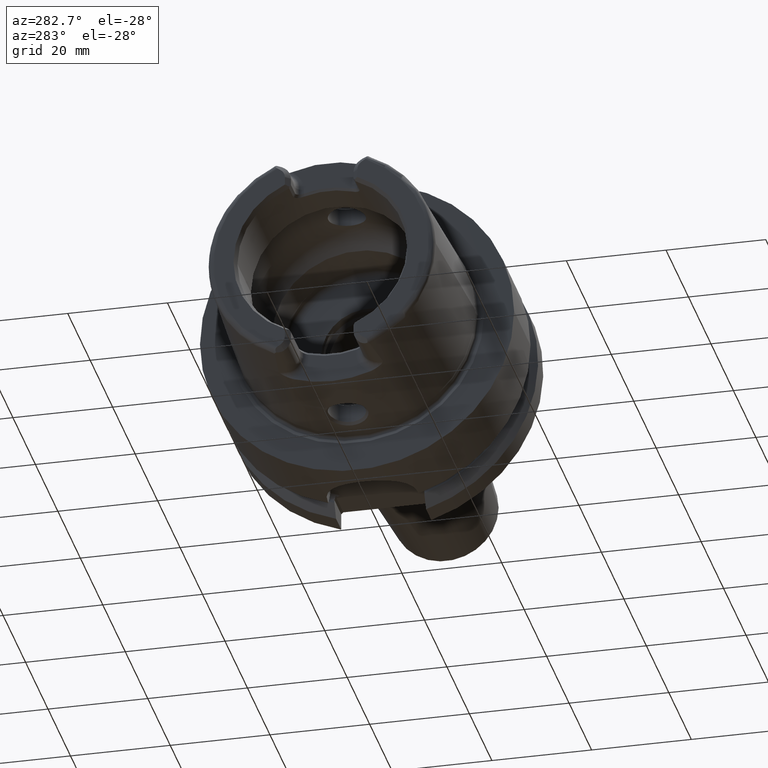
[diagram: clean part render]
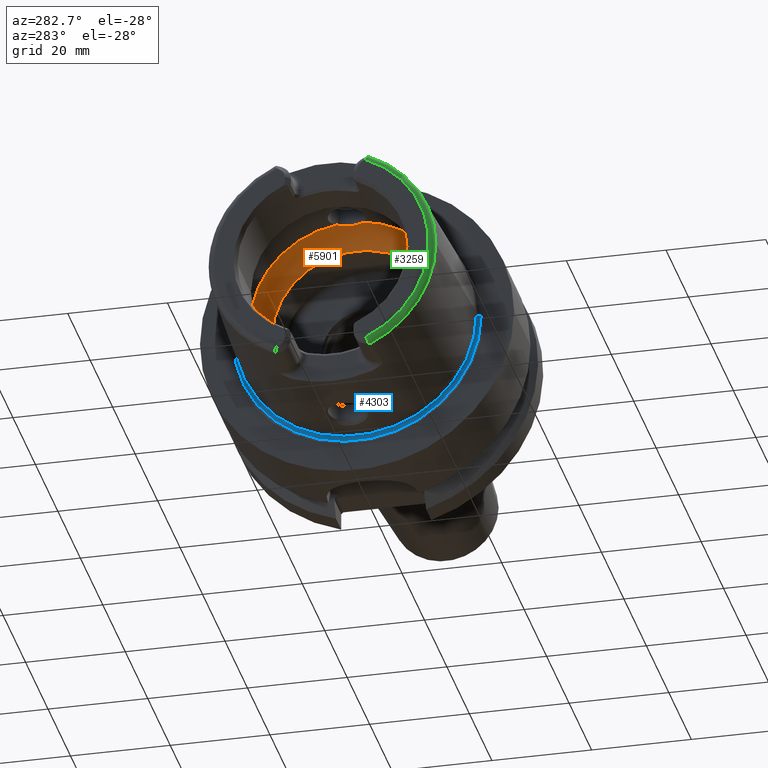
[diagram: same view with three faces highlighted in distinct colors, each labeled with its STEP entity id]
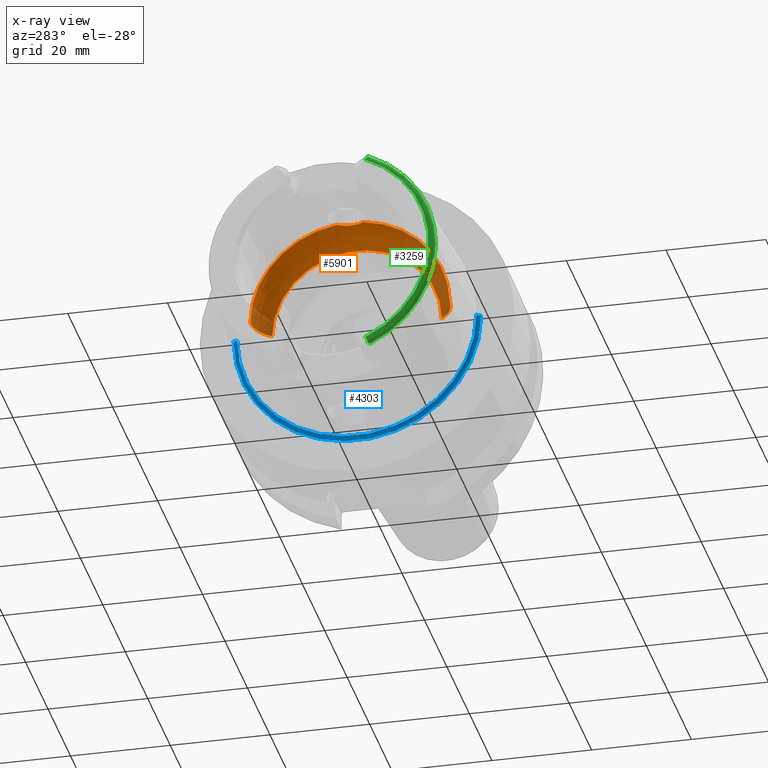
[diagram: x-ray of the same camera — body ghosted, the three highlighted faces saturated]
A machine part, auxiliary view with three faces highlighted in distinct colors.
The next image is the same camera in x-ray (body ghosted, the three faces saturated) — at least one of them is partly hidden behind the body in this view.
Their STEP definitions:

[orange] entity #5901 — the highlighted toroidal blend (fillet) surface has major radius 12 mm and minor (blend) radius 8 mm.
#2230=CARTESIAN_POINT('',(-5.25E0,0.E0,1.992470689575E1));
#2231=CARTESIAN_POINT('',(-5.25E0,1.634249880127E-1,1.992470689575E1));
#2232=CARTESIAN_POINT('',(-5.271317000323E0,4.905125142286E-1,
1.992366860007E1));
#2233=CARTESIAN_POINT('',(-5.367938073203E0,9.753406287590E-1,
1.991846757388E1));
#2234=CARTESIAN_POINT('',(-5.525913254439E0,1.440181253243E0,1.990841194030E1));
#2235=CARTESIAN_POINT('',(-5.745012466850E0,1.883704211740E0,1.989126222791E1));
#2236=CARTESIAN_POINT('',(-6.017092970824E0,2.289932260455E0,1.986481338490E1));
#2237=CARTESIAN_POINT('',(-6.231037578916E0,2.534045566496E0,1.983915065875E1));
#2238=CARTESIAN_POINT('',(-6.344997998398E0,2.648294615690E0,1.982388800484E1));
#2240=CARTESIAN_POINT('',(-6.344997998398E0,-2.648294615690E0,
1.982388800484E1));
#2241=CARTESIAN_POINT('',(-6.231045843136E0,-2.534053851646E0,
1.983914955193E1));
#2242=CARTESIAN_POINT('',(-6.017093742818E0,-2.289943440357E0,
1.986481395775E1));
#2243=CARTESIAN_POINT('',(-5.744901596897E0,-1.883527876206E0,
1.989127237006E1));
#2244=CARTESIAN_POINT('',(-5.525828432433E0,-1.439963272778E0,
1.990841763195E1));
#2245=CARTESIAN_POINT('',(-5.367908372542E0,-9.752317929729E-1,
1.991846926373E1));
#2246=CARTESIAN_POINT('',(-5.271289109403E0,-4.903031116233E-1,
1.992367002777E1));
#2247=CARTESIAN_POINT('',(-5.25E0,-1.633414179458E-1,1.992470689575E1));
#2248=CARTESIAN_POINT('',(-5.25E0,0.E0,1.992470689575E1));
#2250=CARTESIAN_POINT('',(-1.E-1,0.E0,0.E0));
#2251=DIRECTION('',(1.E0,0.E0,0.E0));
#2252=DIRECTION('',(0.E0,1.E0,0.E0));
#2253=AXIS2_PLACEMENT_3D('',#2250,#2251,#2252);
#2275=CARTESIAN_POINT('',(-6.344997998398E0,0.E0,0.E0));
#2276=DIRECTION('',(1.E0,0.E0,0.E0));
#2277=DIRECTION('',(0.E0,1.E0,0.E0));
#2278=AXIS2_PLACEMENT_3D('',#2275,#2276,#2277);
#2280=CARTESIAN_POINT('',(-6.344997998398E0,0.E0,0.E0));
#2281=DIRECTION('',(1.E0,0.E0,0.E0));
#2282=DIRECTION('',(0.E0,-1.324147307845E-1,9.911944002421E-1));
#2283=AXIS2_PLACEMENT_3D('',#2280,#2281,#2282);
#2373=CARTESIAN_POINT('',(-6.344997998398E0,1.2E1,0.E0));
#2374=DIRECTION('',(0.E0,0.E0,1.E0));
#2375=DIRECTION('',(7.806247497998E-1,6.25E-1,0.E0));
#2376=AXIS2_PLACEMENT_3D('',#2373,#2374,#2375);
#2383=CARTESIAN_POINT('',(-6.344997998398E0,-1.2E1,0.E0));
#2384=DIRECTION('',(0.E0,0.E0,-1.E0));
#2385=DIRECTION('',(7.806247497998E-1,-6.25E-1,0.E0));
#2386=AXIS2_PLACEMENT_3D('',#2383,#2384,#2385);
#2652=CARTESIAN_POINT('',(-1.E-1,1.7E1,0.E0));
#2653=VERTEX_POINT('',#2652);
#2654=CARTESIAN_POINT('',(-6.344997998398E0,2.E1,0.E0));
#2655=VERTEX_POINT('',#2654);
#2664=CARTESIAN_POINT('',(-1.E-1,-1.7E1,0.E0));
#2665=VERTEX_POINT('',#2664);
#2666=CARTESIAN_POINT('',(-6.344997998398E0,-2.E1,0.E0));
#2667=VERTEX_POINT('',#2666);
#2835=VERTEX_POINT('',#2230);
#2836=VERTEX_POINT('',#2238);
#2837=VERTEX_POINT('',#2240);
#5882=CARTESIAN_POINT('',(-6.344997998398E0,0.E0,0.E0));
#5883=DIRECTION('',(1.E0,0.E0,0.E0));
#5884=DIRECTION('',(0.E0,-1.E0,0.E0));
#5885=AXIS2_PLACEMENT_3D('',#5882,#5883,#5884);
#5886=TOROIDAL_SURFACE('',#5885,1.2E1,8.E0);
#5887=ORIENTED_EDGE('',*,*,#5859,.F.);
#5888=ORIENTED_EDGE('',*,*,#5625,.F.);
#5890=ORIENTED_EDGE('',*,*,#5889,.T.);
#5892=ORIENTED_EDGE('',*,*,#5891,.F.);
#5894=ORIENTED_EDGE('',*,*,#5893,.F.);
#5896=ORIENTED_EDGE('',*,*,#5895,.T.);
#5898=ORIENTED_EDGE('',*,*,#5897,.T.);
#5899=EDGE_LOOP('',(#5887,#5888,#5890,#5892,#5894,#5896,#5898));
#5900=FACE_OUTER_BOUND('',#5899,.F.);
#5901=ADVANCED_FACE('',(#5900),#5886,.F.);
#2239=B_SPLINE_CURVE_WITH_KNOTS('',3,(#2230,#2231,#2232,#2233,#2234,#2235,#2236,
#2237,#2238),.UNSPECIFIED.,.F.,.F.,(4,1,1,1,1,1,4),(0.E0,1.666666666667E-1,
3.333333333333E-1,5.E-1,6.666666666667E-1,8.333333333333E-1,1.E0),
.UNSPECIFIED.);
#2249=B_SPLINE_CURVE_WITH_KNOTS('',3,(#2240,#2241,#2242,#2243,#2244,#2245,#2246,
#2247,#2248),.UNSPECIFIED.,.F.,.F.,(4,1,1,1,1,1,4),(0.E0,1.666666666667E-1,
3.333333333333E-1,5.E-1,6.666666666667E-1,8.333333333333E-1,1.E0),
.UNSPECIFIED.);
#2254=CIRCLE('',#2253,1.7E1);
#2279=CIRCLE('',#2278,2.E1);
#2284=CIRCLE('',#2283,2.E1);
#2377=CIRCLE('',#2376,8.E0);
#2387=CIRCLE('',#2386,8.E0);
#5625=EDGE_CURVE('',#2837,#2835,#2249,.T.);
#5859=EDGE_CURVE('',#2835,#2836,#2239,.T.);
#5889=EDGE_CURVE('',#2837,#2667,#2284,.T.);
#5891=EDGE_CURVE('',#2665,#2667,#2387,.T.);
#5893=EDGE_CURVE('',#2653,#2665,#2254,.T.);
#5895=EDGE_CURVE('',#2653,#2655,#2377,.T.);
#5897=EDGE_CURVE('',#2655,#2836,#2279,.T.);

[blue] entity #4303 — the highlighted toroidal blend (fillet) surface has major radius 24.6204 mm and minor (blend) radius 0.6 mm.
#1030=CARTESIAN_POINT('',(-3.021696305237E-1,0.E0,0.E0));
#1031=DIRECTION('',(-1.E0,0.E0,0.E0));
#1032=DIRECTION('',(0.E0,1.E0,0.E0));
#1033=AXIS2_PLACEMENT_3D('',#1030,#1031,#1032);
#1045=CARTESIAN_POINT('',(-3.021696305237E-1,2.462042414966E1,0.E0));
#1046=DIRECTION('',(0.E0,0.E0,-1.E0));
#1047=DIRECTION('',(9.304175679820E-1,3.665012267243E-1,0.E0));
#1048=AXIS2_PLACEMENT_3D('',#1045,#1046,#1047);
#1050=CARTESIAN_POINT('',(-3.021696305237E-1,-2.462042414966E1,0.E0));
#1051=DIRECTION('',(0.E0,0.E0,1.E0));
#1052=DIRECTION('',(9.304175679820E-1,-3.665012267243E-1,0.E0));
#1053=AXIS2_PLACEMENT_3D('',#1050,#1051,#1052);
#1055=CARTESIAN_POINT('',(2.560809102655E-1,0.E0,0.E0));
#1056=DIRECTION('',(-1.E0,0.E0,0.E0));
#1057=DIRECTION('',(0.E0,1.E0,0.E0));
#1058=AXIS2_PLACEMENT_3D('',#1055,#1056,#1057);
#2616=CARTESIAN_POINT('',(2.560809102655E-1,-2.484032488569E1,0.E0));
#2617=CARTESIAN_POINT('',(-3.021696305237E-1,-2.402042414966E1,0.E0));
#2618=VERTEX_POINT('',#2616);
#2619=VERTEX_POINT('',#2617);
#2624=CARTESIAN_POINT('',(2.560809102655E-1,2.484032488569E1,0.E0));
#2625=CARTESIAN_POINT('',(-3.021696305237E-1,2.402042414966E1,0.E0));
#2626=VERTEX_POINT('',#2624);
#2627=VERTEX_POINT('',#2625);
#4291=CARTESIAN_POINT('',(-3.021696305237E-1,0.E0,0.E0));
#4292=DIRECTION('',(-1.E0,0.E0,0.E0));
#4293=DIRECTION('',(0.E0,-1.E0,0.E0));
#4294=AXIS2_PLACEMENT_3D('',#4291,#4292,#4293);
#4295=TOROIDAL_SURFACE('',#4294,2.462042414966E1,6.E-1);
#4296=ORIENTED_EDGE('',*,*,#4284,.T.);
#4297=ORIENTED_EDGE('',*,*,#4258,.T.);
#4298=ORIENTED_EDGE('',*,*,#4281,.F.);
#4300=ORIENTED_EDGE('',*,*,#4299,.F.);
#4301=EDGE_LOOP('',(#4296,#4297,#4298,#4300));
#4302=FACE_OUTER_BOUND('',#4301,.F.);
#4303=ADVANCED_FACE('',(#4302),#4295,.F.);
#1034=CIRCLE('',#1033,2.402042414966E1);
#1049=CIRCLE('',#1048,6.E-1);
#1054=CIRCLE('',#1053,6.E-1);
#1059=CIRCLE('',#1058,2.484032488569E1);
#4258=EDGE_CURVE('',#2627,#2619,#1034,.T.);
#4281=EDGE_CURVE('',#2618,#2619,#1054,.T.);
#4284=EDGE_CURVE('',#2626,#2627,#1049,.T.);
#4299=EDGE_CURVE('',#2626,#2618,#1059,.T.);

[green] entity #3259 — the highlighted toroidal blend (fillet) surface has major radius 21.5761 mm and minor (blend) radius 1.2 mm.
#220=CARTESIAN_POINT('',(-3.2E1,-8.752868121732E0,-1.972091419616E1));
#221=CARTESIAN_POINT('',(-3.2E1,-8.806191392107E0,-1.975573003538E1));
#222=CARTESIAN_POINT('',(-3.199307728065E1,-8.906838058357E0,
-1.982971194007E1));
#223=CARTESIAN_POINT('',(-3.195660462370E1,-9.041248816786E0,
-1.996103000182E1));
#224=CARTESIAN_POINT('',(-3.189040233195E1,-9.144202826203E0,
-2.010731482616E1));
#225=CARTESIAN_POINT('',(-3.179646342749E1,-9.206041881340E0,
-2.025988014952E1));
#226=CARTESIAN_POINT('',(-3.168160529070E1,-9.224292971301E0,
-2.040896943202E1));
#227=CARTESIAN_POINT('',(-3.155472601909E1,-9.203436757989E0,
-2.054688136818E1));
#228=CARTESIAN_POINT('',(-3.146778482605E1,-9.169293416595E0,
-2.062842062115E1));
#229=CARTESIAN_POINT('',(-3.142329832300E1,-9.147789680232E0,
-2.066750973939E1));
#231=CARTESIAN_POINT('',(-3.2E1,0.E0,0.E0));
#232=DIRECTION('',(-1.E0,0.E0,0.E0));
#233=DIRECTION('',(0.E0,-4.056746540583E-1,-9.140175463604E-1));
#234=AXIS2_PLACEMENT_3D('',#231,#232,#233);
#236=CARTESIAN_POINT('',(-3.142329832300E1,-9.147789680232E0,2.066750973939E1));
#237=CARTESIAN_POINT('',(-3.146785463680E1,-9.169327161481E0,2.062835928028E1));
#238=CARTESIAN_POINT('',(-3.155487993536E1,-9.203474960428E0,2.054672249220E1));
#239=CARTESIAN_POINT('',(-3.168154941819E1,-9.224273580731E0,2.040902349895E1));
#240=CARTESIAN_POINT('',(-3.179638971845E1,-9.206079697358E0,2.025999286960E1));
#241=CARTESIAN_POINT('',(-3.189041365611E1,-9.144200972137E0,2.010730009138E1));
#242=CARTESIAN_POINT('',(-3.195659880516E1,-9.041253650427E0,1.996104010677E1));
#243=CARTESIAN_POINT('',(-3.199307626724E1,-8.906850532423E0,1.982972129493E1));
#244=CARTESIAN_POINT('',(-3.2E1,-8.806197293584E0,1.975573388857E1));
#245=CARTESIAN_POINT('',(-3.2E1,-8.752868121732E0,1.972091419616E1));
#247=CARTESIAN_POINT('',(-3.132832518959E1,-9.27E0,2.067E1));
#248=CARTESIAN_POINT('',(-3.134450759901E1,-9.250608646179E0,2.067E1));
#249=CARTESIAN_POINT('',(-3.137648814066E1,-9.210816796832E0,2.066962390252E1));
#250=CARTESIAN_POINT('',(-3.140779600340E1,-9.169107457374E0,2.066837887831E1));
#251=CARTESIAN_POINT('',(-3.142329832300E1,-9.147789680232E0,2.066750973939E1));
#253=CARTESIAN_POINT('',(-3.086004306431E1,-9.562027931336E0,2.067E1));
#254=CARTESIAN_POINT('',(-3.089908117982E1,-9.557369764332E0,2.067E1));
#255=CARTESIAN_POINT('',(-3.097780815735E1,-9.539070199208E0,2.067E1));
#256=CARTESIAN_POINT('',(-3.110050491135E1,-9.479694699778E0,2.067E1));
#257=CARTESIAN_POINT('',(-3.121836320761E1,-9.390392333018E0,2.067E1));
#258=CARTESIAN_POINT('',(-3.129230837722E1,-9.313158885277E0,2.067E1));
#259=CARTESIAN_POINT('',(-3.132832518959E1,-9.27E0,2.067E1));
#261=CARTESIAN_POINT('',(-3.086004306431E1,0.E0,0.E0));
#262=DIRECTION('',(1.E0,0.E0,0.E0));
#263=DIRECTION('',(0.E0,-4.198553792210E-1,9.075910205259E-1));
#264=AXIS2_PLACEMENT_3D('',#261,#262,#263);
#266=CARTESIAN_POINT('',(-3.086004306431E1,0.E0,0.E0));
#267=DIRECTION('',(-1.E0,0.E0,0.E0));
#268=DIRECTION('',(0.E0,-4.198553792210E-1,-9.075910205259E-1));
#269=AXIS2_PLACEMENT_3D('',#266,#267,#268);
#271=CARTESIAN_POINT('',(-3.132832518959E1,-9.27E0,-2.067E1));
#272=CARTESIAN_POINT('',(-3.129225458868E1,-9.313223339992E0,-2.067E1));
#273=CARTESIAN_POINT('',(-3.121820569130E1,-9.390519030682E0,-2.067E1));
#274=CARTESIAN_POINT('',(-3.110062643974E1,-9.479612323317E0,-2.067E1));
#275=CARTESIAN_POINT('',(-3.097775607391E1,-9.539101836846E0,-2.067E1));
#276=CARTESIAN_POINT('',(-3.089906305674E1,-9.557371926843E0,-2.067E1));
#277=CARTESIAN_POINT('',(-3.086004306431E1,-9.562027931336E0,-2.067E1));
#279=CARTESIAN_POINT('',(-3.142329832300E1,-9.147789680232E0,
-2.066750973939E1));
#280=CARTESIAN_POINT('',(-3.140773724452E1,-9.169188258734E0,
-2.066838217263E1));
#281=CARTESIAN_POINT('',(-3.137636553203E1,-9.210974971125E0,
-2.066962696388E1));
#282=CARTESIAN_POINT('',(-3.134444355624E1,-9.250685388521E0,-2.067E1));
#283=CARTESIAN_POINT('',(-3.132832518959E1,-9.27E0,-2.067E1));
#2638=CARTESIAN_POINT('',(-3.086004306431E1,-2.277457525750E1,0.E0));
#2639=VERTEX_POINT('',#2638);
#2678=CARTESIAN_POINT('',(-3.086004306431E1,-9.562027931336E0,2.067E1));
#2679=VERTEX_POINT('',#2678);
#2680=VERTEX_POINT('',#259);
#2716=VERTEX_POINT('',#251);
#2725=CARTESIAN_POINT('',(-3.2E1,-8.752868121732E0,1.972091419616E1));
#2726=VERTEX_POINT('',#2725);
#2759=CARTESIAN_POINT('',(-3.086004306431E1,-9.562027931336E0,-2.067E1));
#2760=VERTEX_POINT('',#2759);
#2761=VERTEX_POINT('',#271);
#2822=CARTESIAN_POINT('',(-3.2E1,-8.752868121732E0,-1.972091419616E1));
#2823=VERTEX_POINT('',#2822);
#2824=VERTEX_POINT('',#229);
#3237=CARTESIAN_POINT('',(-3.08E1,0.E0,0.E0));
#3238=DIRECTION('',(1.E0,0.E0,0.E0));
#3239=DIRECTION('',(0.E0,-1.E0,0.E0));
#3240=AXIS2_PLACEMENT_3D('',#3237,#3238,#3239);
#3241=TOROIDAL_SURFACE('',#3240,2.157607835286E1,1.2E0);
#3243=ORIENTED_EDGE('',*,*,#3242,.F.);
#3245=ORIENTED_EDGE('',*,*,#3244,.T.);
#3247=ORIENTED_EDGE('',*,*,#3246,.F.);
#3248=ORIENTED_EDGE('',*,*,#3200,.F.);
#3249=ORIENTED_EDGE('',*,*,#3130,.F.);
#3250=ORIENTED_EDGE('',*,*,#3111,.T.);
#3252=ORIENTED_EDGE('',*,*,#3251,.F.);
#3254=ORIENTED_EDGE('',*,*,#3253,.F.);
#3256=ORIENTED_EDGE('',*,*,#3255,.F.);
#3257=EDGE_LOOP('',(#3243,#3245,#3247,#3248,#3249,#3250,#3252,#3254,#3256));
#3258=FACE_OUTER_BOUND('',#3257,.F.);
#3259=ADVANCED_FACE('',(#3258),#3241,.T.);
#230=B_SPLINE_CURVE_WITH_KNOTS('',3,(#220,#221,#222,#223,#224,#225,#226,#227,
#228,#229),.UNSPECIFIED.,.F.,.F.,(4,1,1,1,1,1,1,4),(0.E0,1.428571428571E-1,
2.857142857143E-1,4.285714285714E-1,5.714285714286E-1,7.142857142857E-1,
8.571428571429E-1,1.E0),.UNSPECIFIED.);
#235=CIRCLE('',#234,2.157607835286E1);
#246=B_SPLINE_CURVE_WITH_KNOTS('',3,(#236,#237,#238,#239,#240,#241,#242,#243,
#244,#245),.UNSPECIFIED.,.F.,.F.,(4,1,1,1,1,1,1,4),(0.E0,1.428571428571E-1,
2.857142857143E-1,4.285714285714E-1,5.714285714286E-1,7.142857142857E-1,
8.571428571429E-1,1.E0),.UNSPECIFIED.);
#252=B_SPLINE_CURVE_WITH_KNOTS('',3,(#247,#248,#249,#250,#251),.UNSPECIFIED.,
.F.,.F.,(4,1,4),(0.E0,5.E-1,1.E0),.UNSPECIFIED.);
#260=B_SPLINE_CURVE_WITH_KNOTS('',3,(#253,#254,#255,#256,#257,#258,#259),
.UNSPECIFIED.,.F.,.F.,(4,1,1,1,4),(0.E0,2.5E-1,5.E-1,7.5E-1,1.E0),
.UNSPECIFIED.);
#265=CIRCLE('',#264,2.277457525750E1);
#270=CIRCLE('',#269,2.277457525750E1);
#278=B_SPLINE_CURVE_WITH_KNOTS('',3,(#271,#272,#273,#274,#275,#276,#277),
.UNSPECIFIED.,.F.,.F.,(4,1,1,1,4),(0.E0,2.5E-1,5.E-1,7.5E-1,1.E0),
.UNSPECIFIED.);
#284=B_SPLINE_CURVE_WITH_KNOTS('',3,(#279,#280,#281,#282,#283),.UNSPECIFIED.,
.F.,.F.,(4,1,4),(0.E0,5.E-1,1.E0),.UNSPECIFIED.);
#3111=EDGE_CURVE('',#2679,#2639,#265,.T.);
#3130=EDGE_CURVE('',#2679,#2680,#260,.T.);
#3200=EDGE_CURVE('',#2680,#2716,#252,.T.);
#3242=EDGE_CURVE('',#2823,#2824,#230,.T.);
#3244=EDGE_CURVE('',#2823,#2726,#235,.T.);
#3246=EDGE_CURVE('',#2716,#2726,#246,.T.);
#3251=EDGE_CURVE('',#2760,#2639,#270,.T.);
#3253=EDGE_CURVE('',#2761,#2760,#278,.T.);
#3255=EDGE_CURVE('',#2824,#2761,#284,.T.);